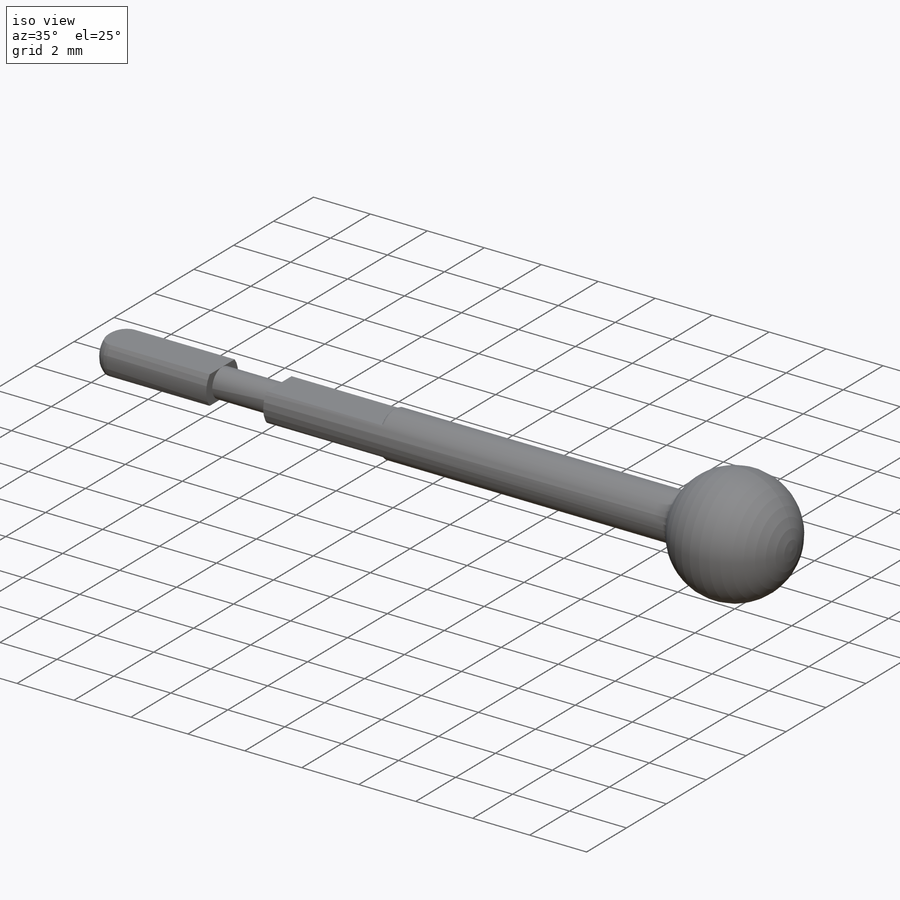
[diagram: iso view]
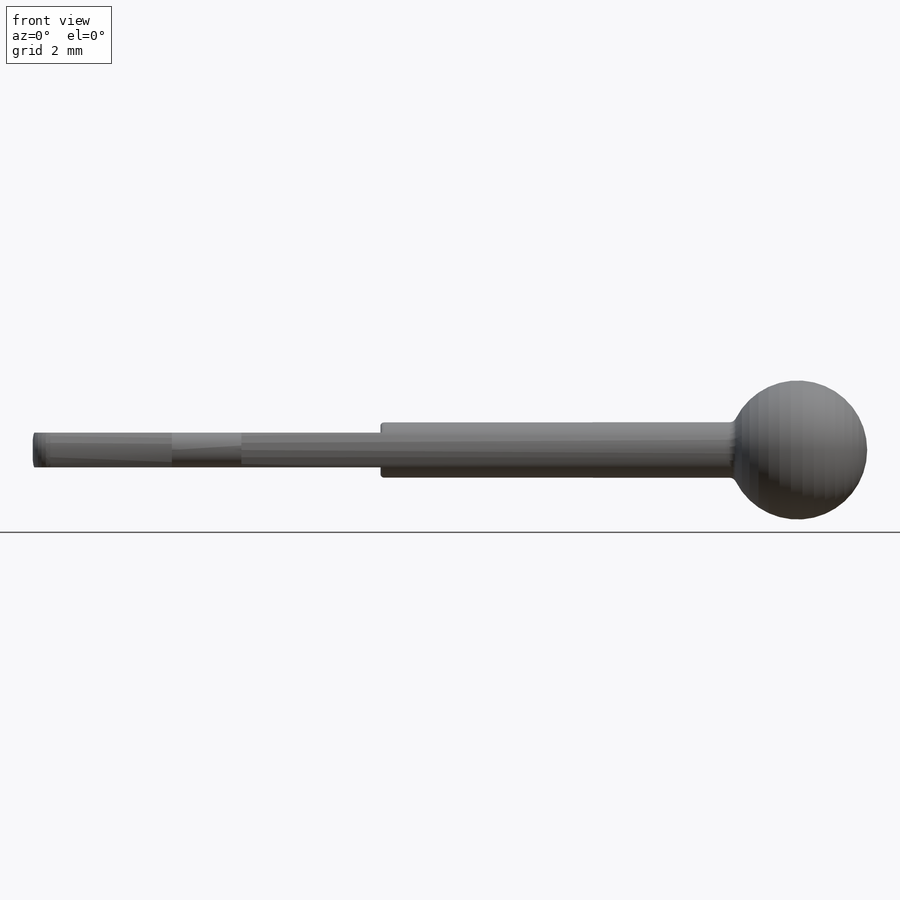
[diagram: front view]
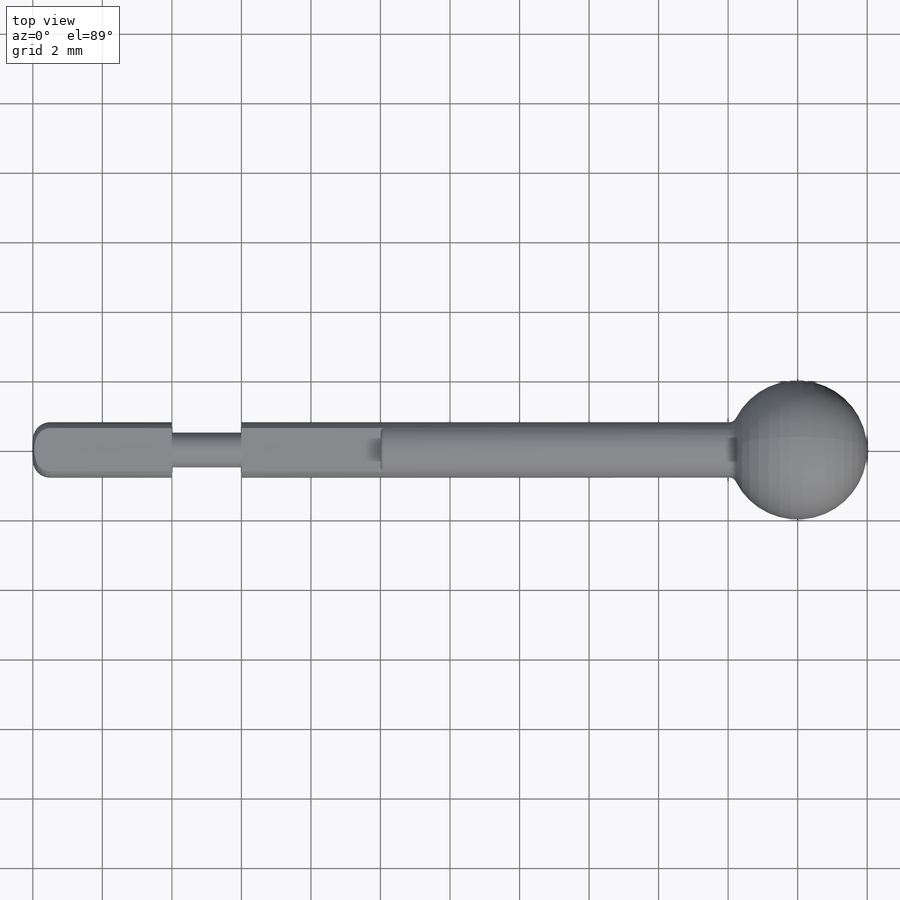
[diagram: top view]
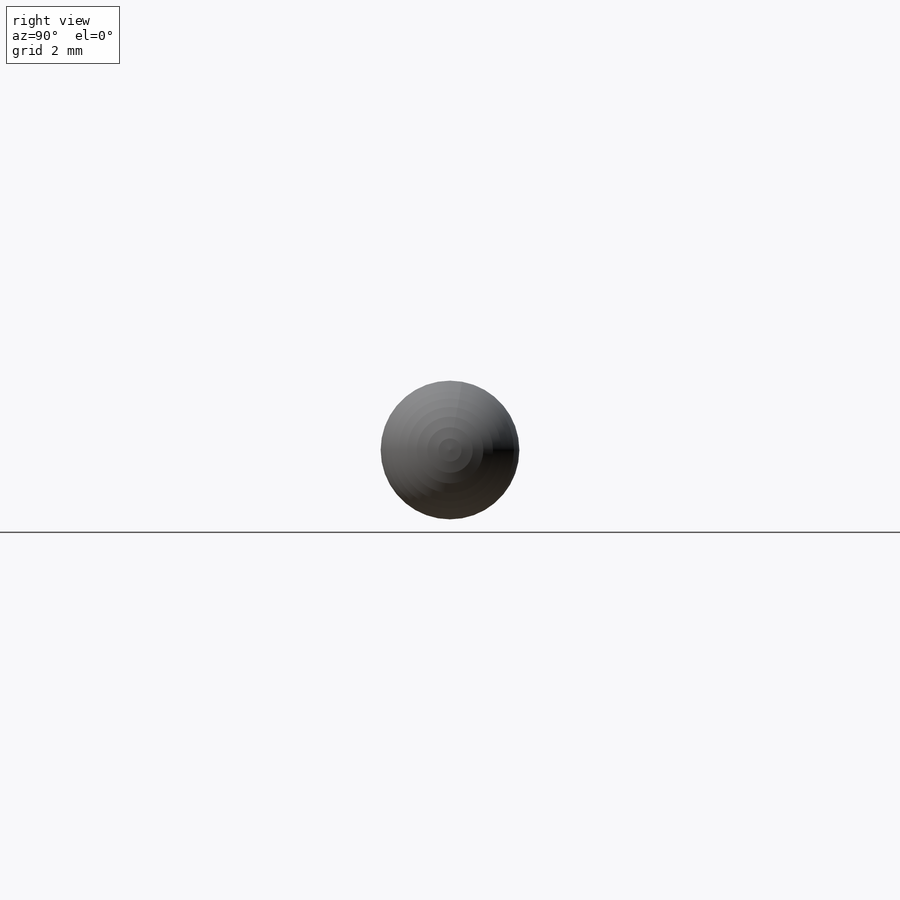
[diagram: right view]
SOLIDWORKS PART (.sldprt)
format: sldprt  version: not decoded by parser v0  size: 217,088 bytes
history: native  units: mm
features: sketch x2, material x1, revolve x1, cut_extrude x1, fillet x1 (+11 scaffold rows collapsed)
feature tree (17):
  scaffold x11  (default folders/planes/origin — collapsed)
  material  "Tungsten"
  sketch  "Sketch1"  dims[D5=4.0mm D1=0.8mm D2=2.0mm D3=2.0mm D4=0.3mm D6=2.0mm]
  revolve  "Revolve1"  Angle=360deg
  sketch  "Sketch2"  dims[D1=0.3mm]
  cut_extrude  "Cut-Extrude1"  Depth=10mm
  fillet  "Fillet3"  Radius=0.2mm
decode coverage: 5 of 5 modeling features carry decoded parameters
note: suppression state not decoded; provenance and decode notes live in map.json
